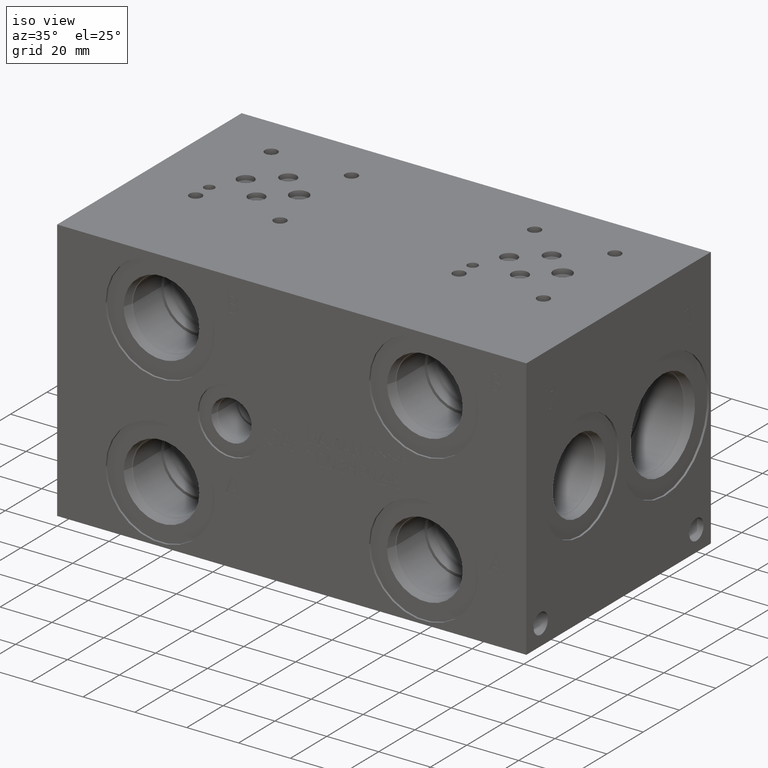
[diagram: clean part render]
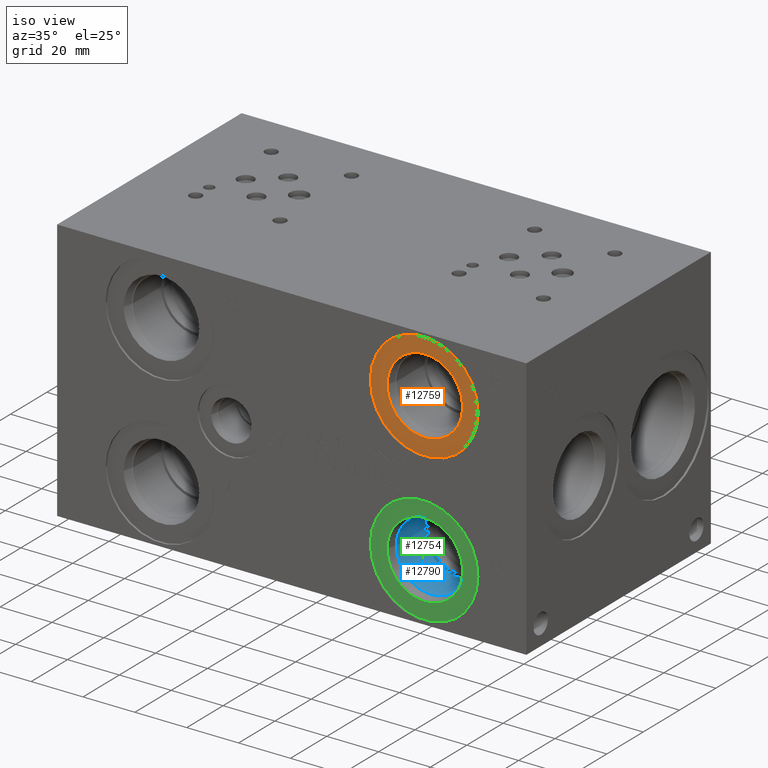
[diagram: same view with three faces highlighted in distinct colors, each labeled with its STEP entity id]
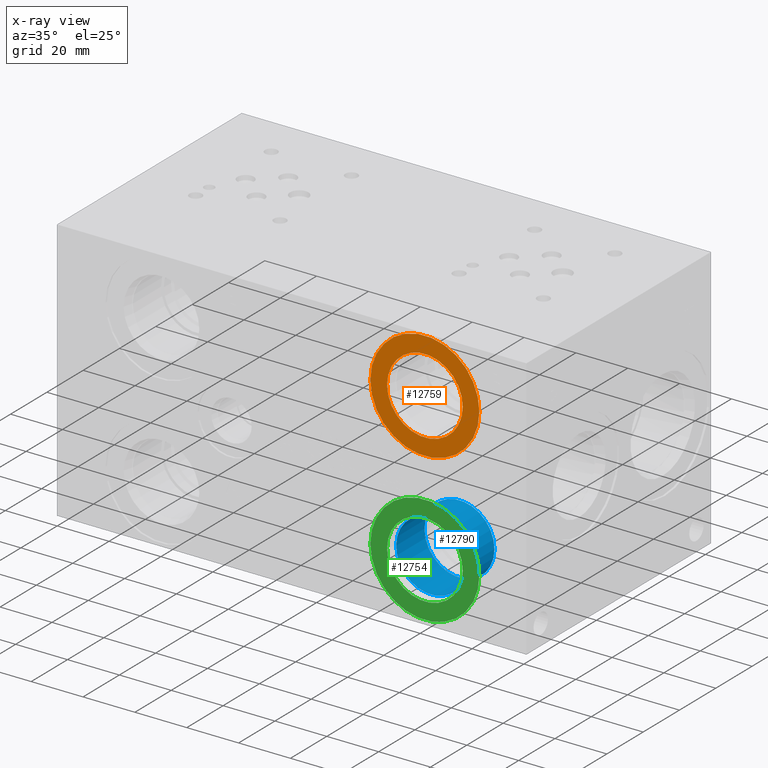
[diagram: x-ray of the same camera — body ghosted, the three highlighted faces saturated]
A machine part, iso view with three faces highlighted in distinct colors.
The next image is the same camera in x-ray (body ghosted, the three faces saturated) — at least one of them is partly hidden behind the body in this view.
Their STEP definitions:

[orange] entity #12759 — the highlighted planar face has unit normal (0, 1, 0).
#295=CIRCLE('',#13427,21.0185);
#296=CIRCLE('',#13428,21.0185);
#297=CIRCLE('',#13430,14.5923);
#298=CIRCLE('',#13431,14.5923);
#980=FACE_BOUND('',#2316,.T.);
#1579=FACE_OUTER_BOUND('',#2315,.T.);
#2315=EDGE_LOOP('',(#10851,#10852));
#2316=EDGE_LOOP('',(#10853,#10854));
#5839=VERTEX_POINT('',#21606);
#5840=VERTEX_POINT('',#21608);
#5841=VERTEX_POINT('',#21612);
#5842=VERTEX_POINT('',#21613);
#7561=EDGE_CURVE('',#5839,#5840,#295,.T.);
#7562=EDGE_CURVE('',#5840,#5839,#296,.T.);
#7563=EDGE_CURVE('',#5841,#5842,#297,.T.);
#7564=EDGE_CURVE('',#5842,#5841,#298,.T.);
#10851=ORIENTED_EDGE('',*,*,#7562,.F.);
#10852=ORIENTED_EDGE('',*,*,#7561,.F.);
#10853=ORIENTED_EDGE('',*,*,#7563,.T.);
#10854=ORIENTED_EDGE('',*,*,#7564,.T.);
#11699=PLANE('',#13429);
#12759=ADVANCED_FACE('',(#1579,#980),#11699,.F.);
#13427=AXIS2_PLACEMENT_3D('',#21609,#15893,#15894);
#13428=AXIS2_PLACEMENT_3D('',#21610,#15895,#15896);
#13429=AXIS2_PLACEMENT_3D('',#21611,#15897,#15898);
#13430=AXIS2_PLACEMENT_3D('',#21614,#15899,#15900);
#13431=AXIS2_PLACEMENT_3D('',#21615,#15901,#15902);
#15893=DIRECTION('center_axis',(0.,1.,0.));
#15894=DIRECTION('ref_axis',(1.,0.,0.));
#15895=DIRECTION('center_axis',(0.,1.,0.));
#15896=DIRECTION('ref_axis',(1.,0.,0.));
#15897=DIRECTION('center_axis',(0.,1.,0.));
#15898=DIRECTION('ref_axis',(0.,0.,1.));
#15899=DIRECTION('center_axis',(0.,1.,0.));
#15900=DIRECTION('ref_axis',(1.,0.,0.));
#15901=DIRECTION('center_axis',(0.,1.,0.));
#15902=DIRECTION('ref_axis',(1.,0.,0.));
#21606=CARTESIAN_POINT('',(120.2563,0.7874,79.375));
#21608=CARTESIAN_POINT('',(162.2933,0.7874,79.375));
#21609=CARTESIAN_POINT('Origin',(141.2748,0.7874,79.375));
#21610=CARTESIAN_POINT('Origin',(141.2748,0.7874,79.375));
#21611=CARTESIAN_POINT('Origin',(155.8671,0.7874,79.375));
#21612=CARTESIAN_POINT('',(155.8671,0.7874,79.375));
#21613=CARTESIAN_POINT('',(126.6825,0.7874,79.375));
#21614=CARTESIAN_POINT('Origin',(141.2748,0.7874,79.375));
#21615=CARTESIAN_POINT('Origin',(141.2748,0.7874,79.375));

[blue] entity #12790 — the highlighted cylindrical surface (bore or boss wall) has radius 13.495 mm, axis along (0, -1, 0).
#63=CYLINDRICAL_SURFACE('',#13509,13.495);
#294=CIRCLE('',#13425,13.495);
#343=CIRCLE('',#13506,13.495);
#344=CIRCLE('',#13507,13.495);
#1610=FACE_OUTER_BOUND('',#2352,.T.);
#2352=EDGE_LOOP('',(#10997,#10998,#10999,#11000,#11001));
#3566=LINE('',#21770,#4740);
#4740=VECTOR('',#16084,13.495);
#5838=VERTEX_POINT('',#21602);
#5891=VERTEX_POINT('',#21763);
#5892=VERTEX_POINT('',#21764);
#7559=EDGE_CURVE('',#5838,#5838,#294,.T.);
#7634=EDGE_CURVE('',#5891,#5892,#343,.T.);
#7635=EDGE_CURVE('',#5892,#5891,#344,.T.);
#7637=EDGE_CURVE('',#5838,#5892,#3566,.T.);
#10997=ORIENTED_EDGE('',*,*,#7559,.T.);
#10998=ORIENTED_EDGE('',*,*,#7637,.T.);
#10999=ORIENTED_EDGE('',*,*,#7634,.F.);
#11000=ORIENTED_EDGE('',*,*,#7635,.F.);
#11001=ORIENTED_EDGE('',*,*,#7637,.F.);
#12790=ADVANCED_FACE('',(#1610),#63,.F.);
#13425=AXIS2_PLACEMENT_3D('',#21604,#15888,#15889);
#13506=AXIS2_PLACEMENT_3D('',#21765,#16076,#16077);
#13507=AXIS2_PLACEMENT_3D('',#21766,#16078,#16079);
#13509=AXIS2_PLACEMENT_3D('',#21769,#16082,#16083);
#15888=DIRECTION('center_axis',(0.,-1.,0.));
#15889=DIRECTION('ref_axis',(1.,0.,0.));
#16076=DIRECTION('center_axis',(0.,-1.,0.));
#16077=DIRECTION('ref_axis',(1.,0.,0.));
#16078=DIRECTION('center_axis',(0.,-1.,0.));
#16079=DIRECTION('ref_axis',(1.,0.,0.));
#16082=DIRECTION('center_axis',(0.,-1.,0.));
#16083=DIRECTION('ref_axis',(1.,0.,0.));
#16084=DIRECTION('',(0.,1.,0.));
#21602=CARTESIAN_POINT('',(127.7798,4.28499999999999,22.225));
#21604=CARTESIAN_POINT('Origin',(141.2748,4.28499999999999,22.225));
#21763=CARTESIAN_POINT('',(154.7698,19.8374,22.225));
#21764=CARTESIAN_POINT('',(127.7798,19.8374,22.225));
#21765=CARTESIAN_POINT('Origin',(141.2748,19.8374,22.225));
#21766=CARTESIAN_POINT('Origin',(141.2748,19.8374,22.225));
#21769=CARTESIAN_POINT('Origin',(141.2748,9.9187,22.225));
#21770=CARTESIAN_POINT('',(127.7798,9.9187,22.225));

[green] entity #12754 — the highlighted planar face has unit normal (0, 1, 0).
#286=CIRCLE('',#13413,21.0185);
#287=CIRCLE('',#13414,21.0185);
#288=CIRCLE('',#13416,14.5923);
#289=CIRCLE('',#13417,14.5923);
#979=FACE_BOUND('',#2310,.T.);
#1574=FACE_OUTER_BOUND('',#2309,.T.);
#2309=EDGE_LOOP('',(#10824,#10825));
#2310=EDGE_LOOP('',(#10826,#10827));
#5830=VERTEX_POINT('',#21579);
#5831=VERTEX_POINT('',#21581);
#5832=VERTEX_POINT('',#21585);
#5833=VERTEX_POINT('',#21586);
#7548=EDGE_CURVE('',#5830,#5831,#286,.T.);
#7549=EDGE_CURVE('',#5831,#5830,#287,.T.);
#7550=EDGE_CURVE('',#5832,#5833,#288,.T.);
#7551=EDGE_CURVE('',#5833,#5832,#289,.T.);
#10824=ORIENTED_EDGE('',*,*,#7549,.F.);
#10825=ORIENTED_EDGE('',*,*,#7548,.F.);
#10826=ORIENTED_EDGE('',*,*,#7550,.T.);
#10827=ORIENTED_EDGE('',*,*,#7551,.T.);
#11698=PLANE('',#13415);
#12754=ADVANCED_FACE('',(#1574,#979),#11698,.F.);
#13413=AXIS2_PLACEMENT_3D('',#21582,#15861,#15862);
#13414=AXIS2_PLACEMENT_3D('',#21583,#15863,#15864);
#13415=AXIS2_PLACEMENT_3D('',#21584,#15865,#15866);
#13416=AXIS2_PLACEMENT_3D('',#21587,#15867,#15868);
#13417=AXIS2_PLACEMENT_3D('',#21588,#15869,#15870);
#15861=DIRECTION('center_axis',(0.,1.,0.));
#15862=DIRECTION('ref_axis',(1.,0.,0.));
#15863=DIRECTION('center_axis',(0.,1.,0.));
#15864=DIRECTION('ref_axis',(1.,0.,0.));
#15865=DIRECTION('center_axis',(0.,1.,0.));
#15866=DIRECTION('ref_axis',(0.,0.,1.));
#15867=DIRECTION('center_axis',(0.,1.,0.));
#15868=DIRECTION('ref_axis',(1.,0.,0.));
#15869=DIRECTION('center_axis',(0.,1.,0.));
#15870=DIRECTION('ref_axis',(1.,0.,0.));
#21579=CARTESIAN_POINT('',(120.2563,0.7874,22.225));
#21581=CARTESIAN_POINT('',(162.2933,0.7874,22.225));
#21582=CARTESIAN_POINT('Origin',(141.2748,0.7874,22.225));
#21583=CARTESIAN_POINT('Origin',(141.2748,0.7874,22.225));
#21584=CARTESIAN_POINT('Origin',(155.8671,0.7874,22.225));
#21585=CARTESIAN_POINT('',(155.8671,0.7874,22.225));
#21586=CARTESIAN_POINT('',(126.6825,0.7874,22.225));
#21587=CARTESIAN_POINT('Origin',(141.2748,0.7874,22.225));
#21588=CARTESIAN_POINT('Origin',(141.2748,0.7874,22.225));